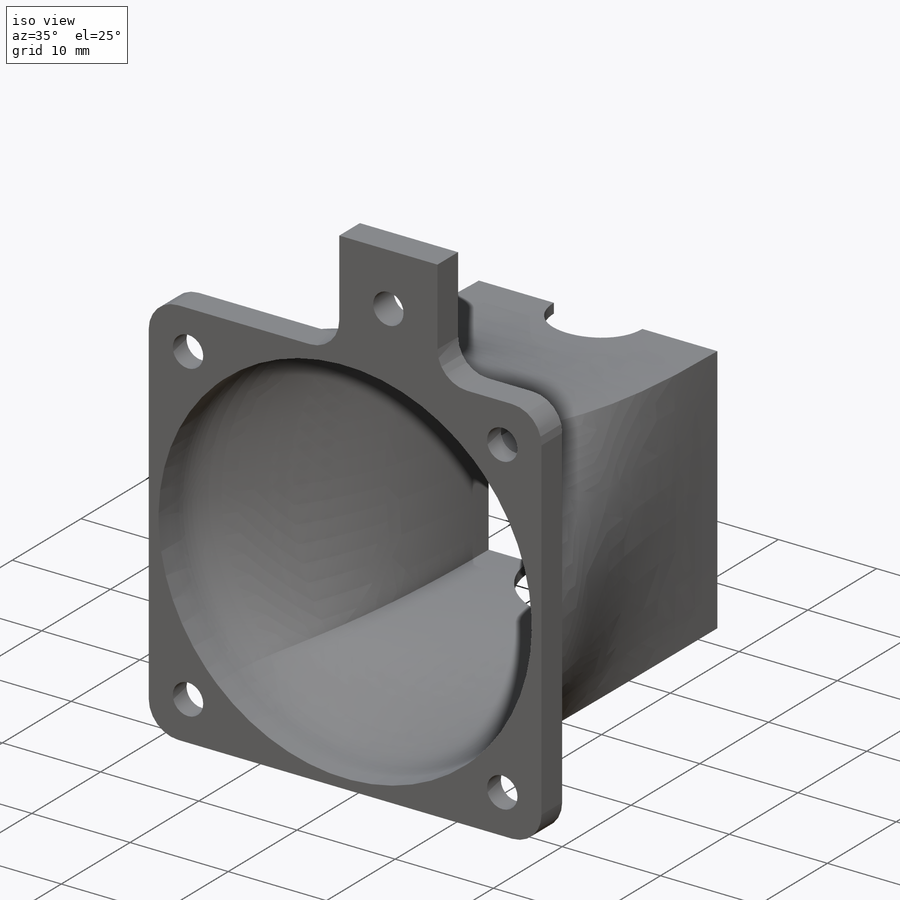
[diagram: iso view]
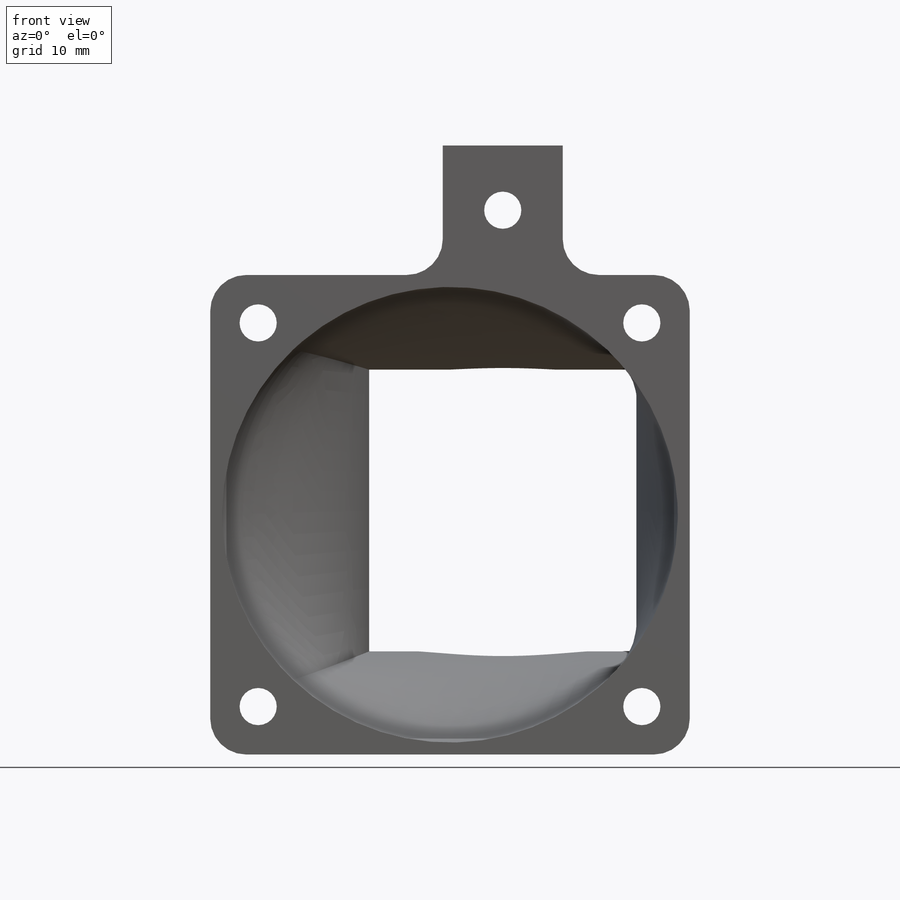
[diagram: front view]
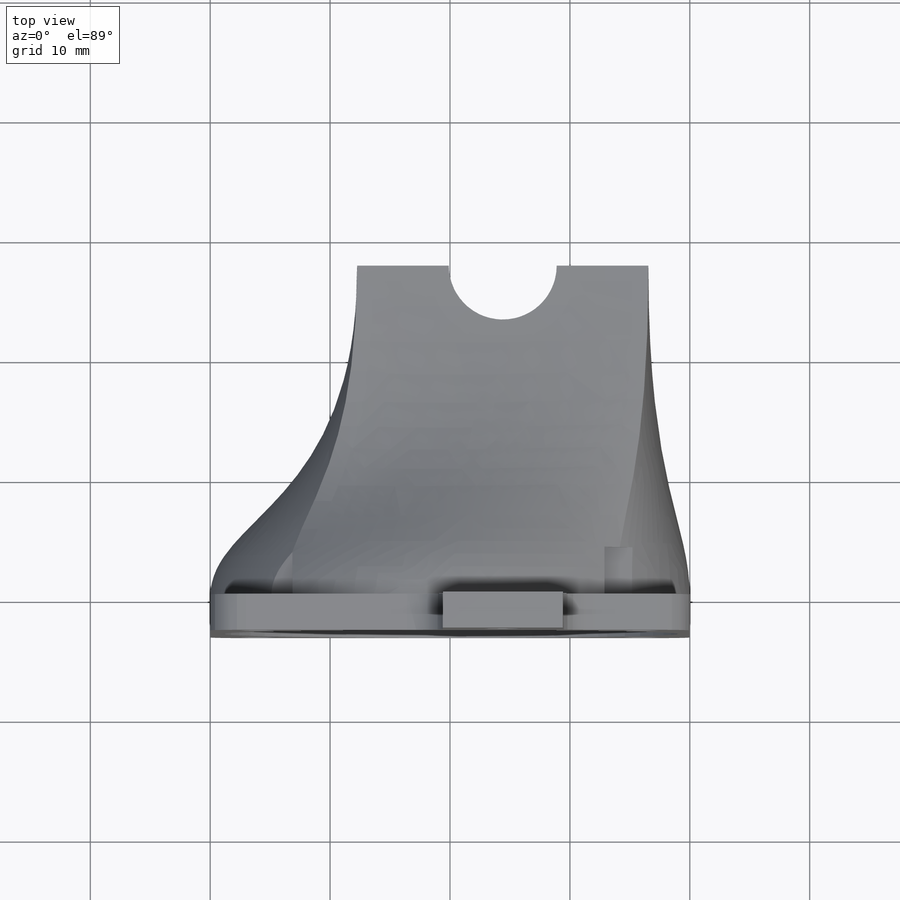
[diagram: top view]
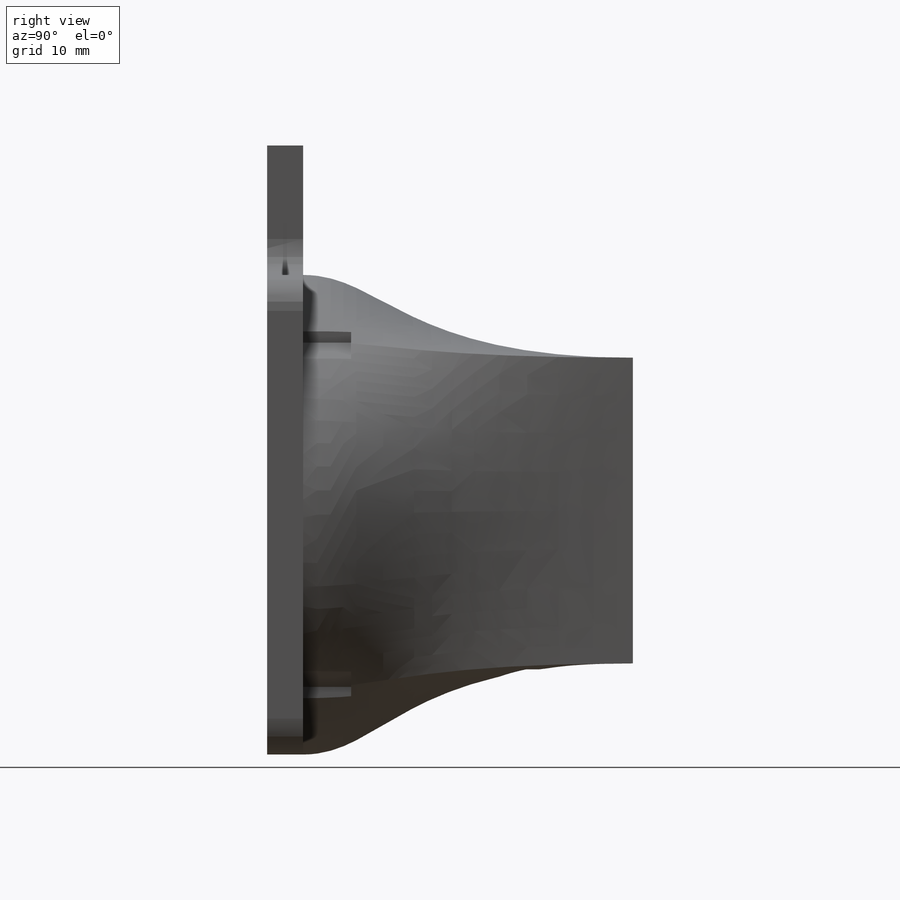
[diagram: right view]
SOLIDWORKS PART (.sldprt)
format: sldprt  version: not decoded by parser v0  size: 630,784 bytes
history: native  units: mm
features: sketch x8, cut_extrude x4, plane x2, extrude x2, fillet x2, material x1, shell x1 (+13 scaffold rows collapsed)
feature tree (33):
  scaffold x13  (default folders/planes/origin — collapsed)
  material  "Material <not specified>"
  plane  "Plane1"
  plane  "Plane3"
  sketch  "Sketch1"  dims[D1=38.0mm D2=1.0mm D3=40.0mm D4=40.0mm]
  sketch  "Sketch2"  dims[D1=1.0mm]
  shell  "Shell1"  Thickness=1mm
  sketch  "Sketch4"
  cut_extrude  "Cut-Extrude3"  Depth=2mm
  sketch  "Sketch5"
  cut_extrude  "Cut-Extrude2"  Depth=2mm
  sketch  "Sketch6"  dims[D5=3.1mm D2=40.0mm D4=32.0mm D1=0.0mm D3=0.0mm]
  extrude  "Boss-Extrude2"  Depth=3mm
  fillet  "Fillet1"  Radius=3mm
  sketch  "Sketch16"  dims[D1=0.0mm]
  cut_extrude  "Cut-Extrude5"  [1 undecoded]
  sketch  "Sketch17"  dims[D1=0.0mm]
  extrude  "Boss-Extrude11"  [1 undecoded]
  fillet  "Fillet2"  Radius=3mm
  sketch  "Sketch18"  dims[D1=5.7mm]
  cut_extrude  "Cut-Extrude6"  Depth=4mm
decode coverage: 13 of 17 modeling features carry decoded parameters
note: 2 parameter values undecoded
note: suppression state not decoded; provenance and decode notes live in map.json
